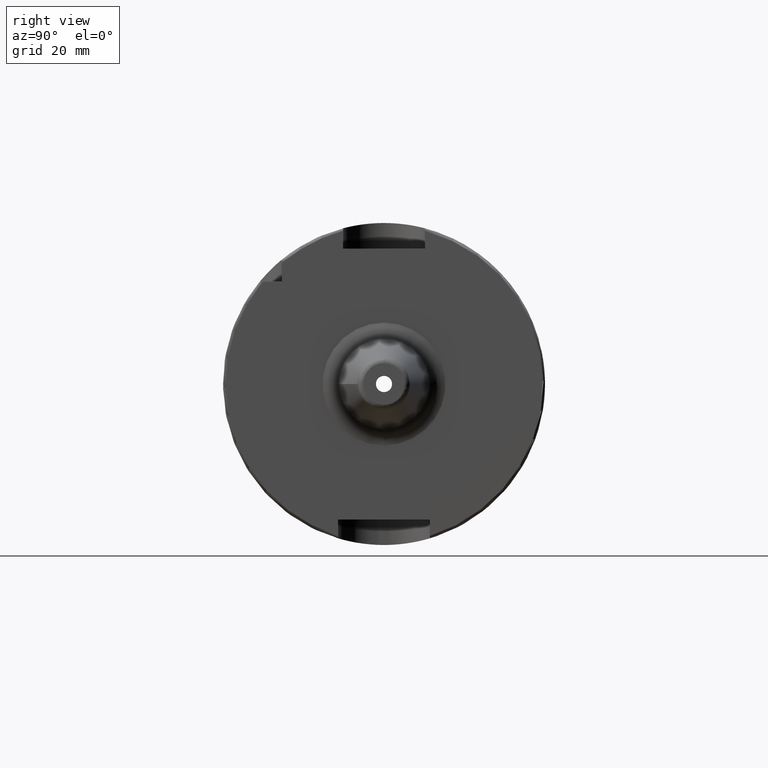
[diagram: clean part render]
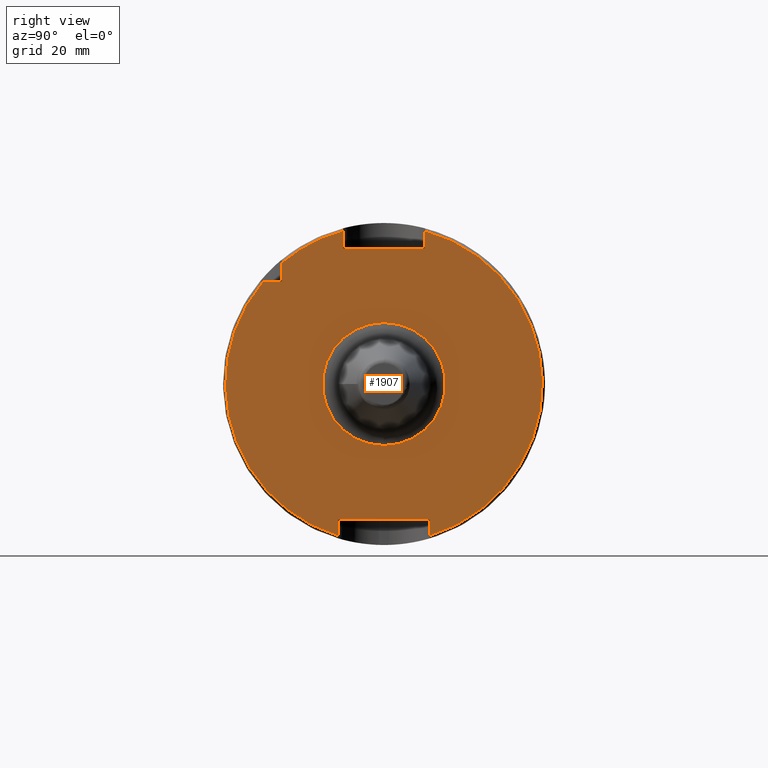
[diagram: same view with one face highlighted and labeled with its STEP entity id]
A machine part, right view. The second image highlights one B-rep face of the part: STEP entity #1907.
In plain terms, the highlighted planar face has unit normal (1, 0, 0).
Its self-contained STEP definition (entity closure, byte-faithful):
#98=FACE_BOUND('',#308,.T.);
#107=PLANE('',#2057);
#193=FACE_OUTER_BOUND('',#307,.T.);
#307=EDGE_LOOP('',(#1291,#1292,#1293,#1294,#1295,#1296,#1297,#1298,#1299,
#1300,#1301));
#308=EDGE_LOOP('',(#1302));
#425=LINE('',#2905,#530);
#426=LINE('',#2909,#531);
#427=LINE('',#2911,#532);
#428=LINE('',#2913,#533);
#429=LINE('',#2917,#534);
#430=LINE('',#2919,#535);
#431=LINE('',#2921,#536);
#432=LINE('',#2924,#537);
#530=VECTOR('',#2328,10.);
#531=VECTOR('',#2331,10.);
#532=VECTOR('',#2332,10.);
#533=VECTOR('',#2333,10.);
#534=VECTOR('',#2336,10.);
#535=VECTOR('',#2337,10.);
#536=VECTOR('',#2338,10.);
#537=VECTOR('',#2341,10.);
#643=CIRCLE('',#2056,12.023063643504);
#644=CIRCLE('',#2058,31.);
#645=CIRCLE('',#2059,31.);
#646=CIRCLE('',#2060,31.);
#762=VERTEX_POINT('',#2899);
#763=VERTEX_POINT('',#2903);
#764=VERTEX_POINT('',#2904);
#765=VERTEX_POINT('',#2906);
#766=VERTEX_POINT('',#2908);
#767=VERTEX_POINT('',#2910);
#768=VERTEX_POINT('',#2912);
#769=VERTEX_POINT('',#2914);
#770=VERTEX_POINT('',#2916);
#771=VERTEX_POINT('',#2918);
#772=VERTEX_POINT('',#2920);
#773=VERTEX_POINT('',#2922);
#967=EDGE_CURVE('',#762,#762,#643,.T.);
#968=EDGE_CURVE('',#763,#764,#425,.T.);
#969=EDGE_CURVE('',#764,#765,#644,.T.);
#970=EDGE_CURVE('',#765,#766,#426,.T.);
#971=EDGE_CURVE('',#766,#767,#427,.T.);
#972=EDGE_CURVE('',#767,#768,#428,.T.);
#973=EDGE_CURVE('',#768,#769,#645,.T.);
#974=EDGE_CURVE('',#769,#770,#429,.T.);
#975=EDGE_CURVE('',#770,#771,#430,.T.);
#976=EDGE_CURVE('',#771,#772,#431,.T.);
#977=EDGE_CURVE('',#772,#773,#646,.T.);
#978=EDGE_CURVE('',#773,#763,#432,.T.);
#1291=ORIENTED_EDGE('',*,*,#968,.T.);
#1292=ORIENTED_EDGE('',*,*,#969,.T.);
#1293=ORIENTED_EDGE('',*,*,#970,.T.);
#1294=ORIENTED_EDGE('',*,*,#971,.T.);
#1295=ORIENTED_EDGE('',*,*,#972,.T.);
#1296=ORIENTED_EDGE('',*,*,#973,.T.);
#1297=ORIENTED_EDGE('',*,*,#974,.T.);
#1298=ORIENTED_EDGE('',*,*,#975,.T.);
#1299=ORIENTED_EDGE('',*,*,#976,.T.);
#1300=ORIENTED_EDGE('',*,*,#977,.T.);
#1301=ORIENTED_EDGE('',*,*,#978,.T.);
#1302=ORIENTED_EDGE('',*,*,#967,.F.);
#1907=ADVANCED_FACE('',(#193,#98),#107,.T.);
#2056=AXIS2_PLACEMENT_3D('',#2901,#2324,#2325);
#2057=AXIS2_PLACEMENT_3D('',#2902,#2326,#2327);
#2058=AXIS2_PLACEMENT_3D('',#2907,#2329,#2330);
#2059=AXIS2_PLACEMENT_3D('',#2915,#2334,#2335);
#2060=AXIS2_PLACEMENT_3D('',#2923,#2339,#2340);
#2324=DIRECTION('center_axis',(1.,0.,0.));
#2325=DIRECTION('ref_axis',(0.,-1.,-1.22464679914735E-16));
#2326=DIRECTION('center_axis',(1.,0.,0.));
#2327=DIRECTION('ref_axis',(0.,0.,-1.));
#2328=DIRECTION('',(0.,-1.,0.));
#2329=DIRECTION('center_axis',(1.,0.,0.));
#2330=DIRECTION('ref_axis',(0.,0.,-1.));
#2331=DIRECTION('',(0.,0.,1.));
#2332=DIRECTION('',(0.,1.,0.));
#2333=DIRECTION('',(0.,0.,-1.));
#2334=DIRECTION('center_axis',(1.,0.,0.));
#2335=DIRECTION('ref_axis',(0.,0.,-1.));
#2336=DIRECTION('',(0.,0.,-1.));
#2337=DIRECTION('',(0.,-1.,0.));
#2338=DIRECTION('',(0.,0.,1.));
#2339=DIRECTION('center_axis',(1.,0.,0.));
#2340=DIRECTION('ref_axis',(0.,0.,-1.));
#2341=DIRECTION('',(0.,0.,-1.));
#2899=CARTESIAN_POINT('',(26.,-1.47240064069621E-15,-12.023063643504));
#2901=CARTESIAN_POINT('Origin',(26.,0.,0.));
#2902=CARTESIAN_POINT('Origin',(26.,0.,0.));
#2903=CARTESIAN_POINT('',(26.,-20.,20.));
#2904=CARTESIAN_POINT('',(26.,-23.685438564654,20.));
#2905=CARTESIAN_POINT('',(26.,-12.,20.));
#2906=CARTESIAN_POINT('',(26.,-9.,-29.6647939483827));
#2907=CARTESIAN_POINT('Origin',(26.,0.,0.));
#2908=CARTESIAN_POINT('',(26.,-9.,-26.5));
#2909=CARTESIAN_POINT('',(26.,-9.,-13.25));
#2910=CARTESIAN_POINT('',(26.,9.,-26.5));
#2911=CARTESIAN_POINT('',(26.,1.94289029309402E-15,-26.5));
#2912=CARTESIAN_POINT('',(26.,9.,-29.6647939483827));
#2913=CARTESIAN_POINT('',(26.,9.,-13.25));
#2914=CARTESIAN_POINT('',(26.,8.,29.9499582637439));
#2915=CARTESIAN_POINT('Origin',(26.,0.,0.));
#2916=CARTESIAN_POINT('',(26.,8.,26.5));
#2917=CARTESIAN_POINT('',(26.,8.,13.25));
#2918=CARTESIAN_POINT('',(26.,-8.,26.5));
#2919=CARTESIAN_POINT('',(26.,5.55111512312578E-16,26.5));
#2920=CARTESIAN_POINT('',(26.,-8.,29.9499582637439));
#2921=CARTESIAN_POINT('',(26.,-8.,13.25));
#2922=CARTESIAN_POINT('',(26.,-20.,23.685438564654));
#2923=CARTESIAN_POINT('Origin',(26.,0.,0.));
#2924=CARTESIAN_POINT('',(26.,-20.,10.));